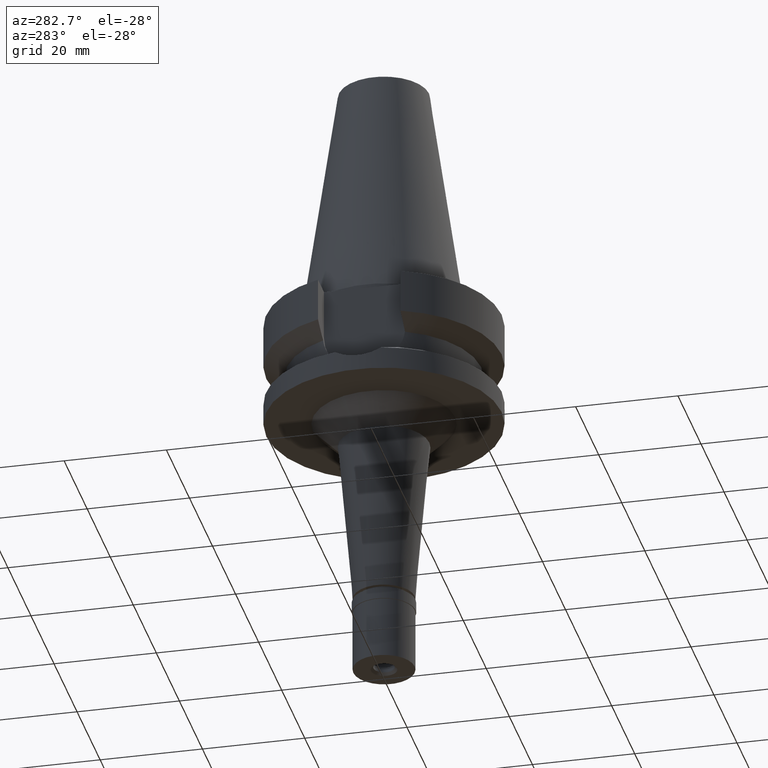
[diagram: clean part render]
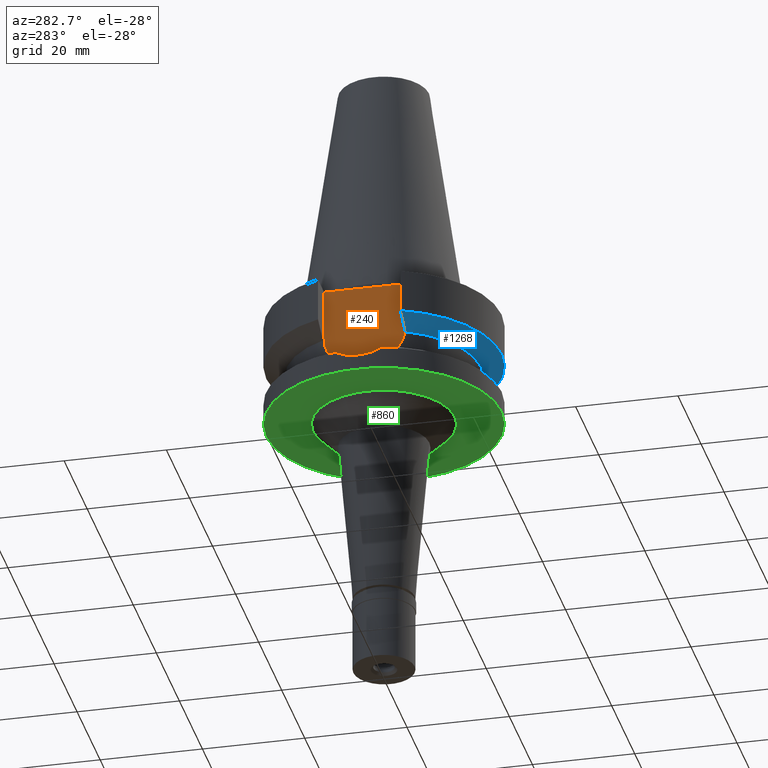
[diagram: same view with three faces highlighted in distinct colors, each labeled with its STEP entity id]
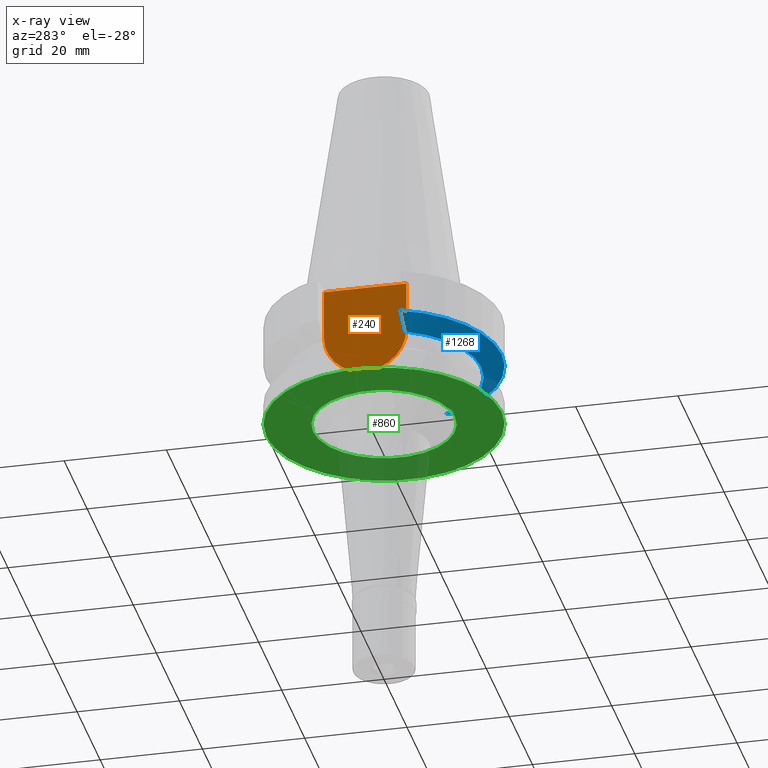
[diagram: x-ray of the same camera — body ghosted, the three highlighted faces saturated]
A machine part, auxiliary view with three faces highlighted in distinct colors.
The next image is the same camera in x-ray (body ghosted, the three faces saturated) — at least one of them is partly hidden behind the body in this view.
Their STEP definitions:

[orange] entity #240 — the highlighted planar face has unit normal (-1, 0, 0).
#128 = LINE ( 'NONE', #1467, #1299 ) ;
#240 = ADVANCED_FACE ( 'NONE', ( #2196 ), #1993, .T. ) ;
#254 = ORIENTED_EDGE ( 'NONE', *, *, #2367, .F. ) ;
#306 = VECTOR ( 'NONE', #1677, 1000.000000000000000 ) ;
#341 = AXIS2_PLACEMENT_3D ( 'NONE', #934, #1844, #1624 ) ;
#656 = DIRECTION ( 'NONE',  ( 0.0000000000000000000, 0.0000000000000000000, -1.000000000000000000 ) ) ;
#753 = LINE ( 'NONE', #1027, #306 ) ;
#778 = ORIENTED_EDGE ( 'NONE', *, *, #2818, .F. ) ;
#834 = CARTESIAN_POINT ( 'NONE',  ( -16.29999999999999716, 2.249676170033999711E-14, 0.0000000000000000000 ) ) ;
#861 = DIRECTION ( 'NONE',  ( 0.0000000000000000000, 0.0000000000000000000, 1.000000000000000000 ) ) ;
#934 = CARTESIAN_POINT ( 'NONE',  ( -16.29999999999999716, 1.981478521019999946E-14, -10.94999999999999929 ) ) ;
#1027 = CARTESIAN_POINT ( 'NONE',  ( -16.29999999999999716, 8.050000000000000711, -10.94999999999999929 ) ) ;
#1122 = ORIENTED_EDGE ( 'NONE', *, *, #2425, .F. ) ;
#1161 = VECTOR ( 'NONE', #656, 1000.000000000000000 ) ;
#1299 = VECTOR ( 'NONE', #2142, 1000.000000000000000 ) ;
#1467 = CARTESIAN_POINT ( 'NONE',  ( -16.29999999999999716, -8.050000000000000711, -1.000000000000000000 ) ) ;
#1538 = EDGE_CURVE ( 'NONE', #1604, #2390, #128, .T. ) ;
#1604 = VERTEX_POINT ( 'NONE', #1711 ) ;
#1623 = CIRCLE ( 'NONE', #341, 8.050000000000000711 ) ;
#1624 = DIRECTION ( 'NONE',  ( 0.0000000000000000000, 0.0000000000000000000, -1.000000000000000000 ) ) ;
#1659 = EDGE_LOOP ( 'NONE', ( #1122, #254, #778, #2647 ) ) ;
#1677 = DIRECTION ( 'NONE',  ( 0.0000000000000000000, 0.0000000000000000000, 1.000000000000000000 ) ) ;
#1698 = VERTEX_POINT ( 'NONE', #2109 ) ;
#1711 = CARTESIAN_POINT ( 'NONE',  ( -16.29999999999999716, -8.050000000000000711, -1.000000000000000000 ) ) ;
#1844 = DIRECTION ( 'NONE',  ( 1.000000000000000000, 0.0000000000000000000, 0.0000000000000000000 ) ) ;
#1862 = VERTEX_POINT ( 'NONE', #2406 ) ;
#1993 = PLANE ( 'NONE',  #2063 ) ;
#2063 = AXIS2_PLACEMENT_3D ( 'NONE', #834, #2668, #861 ) ;
#2109 = CARTESIAN_POINT ( 'NONE',  ( -16.29999999999999716, -8.050000000000000711, -10.94999999999999929 ) ) ;
#2142 = DIRECTION ( 'NONE',  ( 0.0000000000000000000, 1.000000000000000000, 0.0000000000000000000 ) ) ;
#2178 = CARTESIAN_POINT ( 'NONE',  ( -16.29999999999999716, 8.050000000000000711, -1.000000000000000000 ) ) ;
#2196 = FACE_OUTER_BOUND ( 'NONE', #1659, .T. ) ;
#2367 = EDGE_CURVE ( 'NONE', #1698, #1862, #1623, .T. ) ;
#2390 = VERTEX_POINT ( 'NONE', #2178 ) ;
#2406 = CARTESIAN_POINT ( 'NONE',  ( -16.29999999999999716, 8.050000000000000711, -10.94999999999999929 ) ) ;
#2425 = EDGE_CURVE ( 'NONE', #1862, #2390, #753, .T. ) ;
#2517 = CARTESIAN_POINT ( 'NONE',  ( -16.29999999999999716, -8.050000000000000711, -1.000000000000000000 ) ) ;
#2647 = ORIENTED_EDGE ( 'NONE', *, *, #1538, .T. ) ;
#2668 = DIRECTION ( 'NONE',  ( -1.000000000000000000, 0.0000000000000000000, 0.0000000000000000000 ) ) ;
#2752 = LINE ( 'NONE', #2517, #1161 ) ;
#2818 = EDGE_CURVE ( 'NONE', #1604, #1698, #2752, .T. ) ;

[blue] entity #1268 — the highlighted conical surface has half-angle 60 deg.
#18 = FACE_OUTER_BOUND ( 'NONE', #790, .T. ) ;
#21 = DIRECTION ( 'NONE',  ( 0.0000000000000000000, -1.000000000000000000, 0.0000000000000000000 ) ) ;
#102 = VERTEX_POINT ( 'NONE', #611 ) ;
#118 = ORIENTED_EDGE ( 'NONE', *, *, #2947, .F. ) ;
#411 = EDGE_CURVE ( 'NONE', #2332, #844, #731, .T. ) ;
#427 = CIRCLE ( 'NONE', #1136, 23.00000000000000000 ) ;
#554 = CARTESIAN_POINT ( 'NONE',  ( 0.0000000000000000000, 1.093341284896999988E-14, -9.567208369710998639 ) ) ;
#564 = CARTESIAN_POINT ( 'NONE',  ( 18.96736186693999926, -8.050001277873001015, -10.94999977540000025 ) ) ;
#591 = CIRCLE ( 'NONE', #1360, 19.00000000000000000 ) ;
#598 = CARTESIAN_POINT ( 'NONE',  ( 18.30417677519795916, -8.050000009833846448, -11.30245973939780235 ) ) ;
#610 = CARTESIAN_POINT ( 'NONE',  ( -21.54524325238000060, -8.049999577366000025, -9.567211146628999074 ) ) ;
#611 = CARTESIAN_POINT ( 'NONE',  ( 21.54524309446999908, -8.050000000002000888, -9.567208369710998639 ) ) ;
#639 = CARTESIAN_POINT ( 'NONE',  ( -18.30334760937699201, -8.049999956192326778, -11.30291655530038852 ) ) ;
#648 = CARTESIAN_POINT ( 'NONE',  ( -17.23531622822000386, -7.996491147957000223, -11.87660607717000083 ) ) ;
#727 = EDGE_CURVE ( 'NONE', #1423, #102, #1385, .T. ) ;
#731 = B_SPLINE_CURVE_WITH_KNOTS ( 'NONE', 3,
 ( #610, #768, #1474, #1260 ),
 .UNSPECIFIED., .F., .F.,
 ( 4, 4 ),
 ( 0.0000000000000000000, 1.000000000000000000 ),
 .UNSPECIFIED. ) ;
#733 = DIRECTION ( 'NONE',  ( 0.0000000000000000000, 1.000000000000000000, 0.0000000000000000000 ) ) ;
#763 = CARTESIAN_POINT ( 'NONE',  ( 21.54524309446999908, -8.050000000002000888, -9.567208369710998639 ) ) ;
#768 = CARTESIAN_POINT ( 'NONE',  ( -20.64098922447006501, -8.049999155425616948, -10.05625859811076062 ) ) ;
#790 = EDGE_LOOP ( 'NONE', ( #2656, #118, #2879, #2450, #2123, #1004 ) ) ;
#793 = EDGE_CURVE ( 'NONE', #2332, #102, #427, .T. ) ;
#822 = VERTEX_POINT ( 'NONE', #933 ) ;
#844 = VERTEX_POINT ( 'NONE', #1992 ) ;
#914 = VERTEX_POINT ( 'NONE', #1838 ) ;
#933 = CARTESIAN_POINT ( 'NONE',  ( 17.23531135313000107, -7.996501749111999402, -11.87660739354000050 ) ) ;
#940 = CARTESIAN_POINT ( 'NONE',  ( 0.0000000000000000000, 1.093341284896999988E-14, -10.72190890808999875 ) ) ;
#948 = AXIS2_PLACEMENT_3D ( 'NONE', #940, #2111, #733 ) ;
#989 = CARTESIAN_POINT ( 'NONE',  ( 18.96736186693999926, -8.050001277873001015, -10.94999977540000025 ) ) ;
#1004 = ORIENTED_EDGE ( 'NONE', *, *, #411, .T. ) ;
#1136 = AXIS2_PLACEMENT_3D ( 'NONE', #554, #2781, #21 ) ;
#1260 = CARTESIAN_POINT ( 'NONE',  ( -18.96738966519000158, -8.049994318072998922, -10.95000099924999937 ) ) ;
#1268 = ADVANCED_FACE ( 'NONE', ( #18 ), #2392, .T. ) ;
#1360 = AXIS2_PLACEMENT_3D ( 'NONE', #2117, #2380, #1426 ) ;
#1385 = B_SPLINE_CURVE_WITH_KNOTS ( 'NONE', 3,
 ( #989, #1634, #2809, #763 ),
 .UNSPECIFIED., .F., .F.,
 ( 4, 4 ),
 ( 0.0000000000000000000, 1.000000000000000000 ),
 .UNSPECIFIED. ) ;
#1400 = CARTESIAN_POINT ( 'NONE',  ( -21.54524325238000060, -8.049999577366000025, -9.567211146628999074 ) ) ;
#1423 = VERTEX_POINT ( 'NONE', #564 ) ;
#1426 = DIRECTION ( 'NONE',  ( 0.0000000000000000000, -1.000000000000000000, 0.0000000000000000000 ) ) ;
#1452 = B_SPLINE_CURVE_WITH_KNOTS ( 'NONE', 3,
 ( #1950, #598, #2664, #2208 ),
 .UNSPECIFIED., .F., .F.,
 ( 4, 4 ),
 ( 0.0000000000000000000, 1.000000000000000000 ),
 .UNSPECIFIED. ) ;
#1474 = CARTESIAN_POINT ( 'NONE',  ( -19.78174442230801944, -8.049991903457389242, -10.51718567404479820 ) ) ;
#1634 = CARTESIAN_POINT ( 'NONE',  ( 19.78176446227738339, -8.050001299918164932, -10.51717305795229151 ) ) ;
#1776 = CARTESIAN_POINT ( 'NONE',  ( -17.72598979705365707, -8.027133611820948644, -11.61218201620178014 ) ) ;
#1784 = B_SPLINE_CURVE_WITH_KNOTS ( 'NONE', 3,
 ( #648, #1776, #639, #2001 ),
 .UNSPECIFIED., .F., .F.,
 ( 4, 4 ),
 ( 0.0000000000000000000, 1.000000000000000000 ),
 .UNSPECIFIED. ) ;
#1838 = CARTESIAN_POINT ( 'NONE',  ( -17.23531622822000386, -7.996491147957000223, -11.87660607717000083 ) ) ;
#1950 = CARTESIAN_POINT ( 'NONE',  ( 18.96736186693999926, -8.050001277873001015, -10.94999977540000025 ) ) ;
#1992 = CARTESIAN_POINT ( 'NONE',  ( -18.96738966519000158, -8.049994318072998922, -10.95000099924999937 ) ) ;
#2001 = CARTESIAN_POINT ( 'NONE',  ( -18.96738966519000158, -8.049994318072998922, -10.95000099924999937 ) ) ;
#2111 = DIRECTION ( 'NONE',  ( 0.0000000000000000000, 0.0000000000000000000, 1.000000000000000000 ) ) ;
#2117 = CARTESIAN_POINT ( 'NONE',  ( 0.0000000000000000000, 1.093341284896999988E-14, -11.87660944646999894 ) ) ;
#2123 = ORIENTED_EDGE ( 'NONE', *, *, #793, .F. ) ;
#2135 = EDGE_CURVE ( 'NONE', #914, #844, #1784, .T. ) ;
#2208 = CARTESIAN_POINT ( 'NONE',  ( 17.23531135313000107, -7.996501749111999402, -11.87660739354000050 ) ) ;
#2332 = VERTEX_POINT ( 'NONE', #1400 ) ;
#2380 = DIRECTION ( 'NONE',  ( 0.0000000000000000000, 0.0000000000000000000, -1.000000000000000000 ) ) ;
#2392 = CONICAL_SURFACE ( 'NONE', #948, 21.00000000000000000, 1.047197551196400456 ) ;
#2450 = ORIENTED_EDGE ( 'NONE', *, *, #727, .T. ) ;
#2656 = ORIENTED_EDGE ( 'NONE', *, *, #2135, .F. ) ;
#2664 = CARTESIAN_POINT ( 'NONE',  ( 17.72682660392796095, -8.027186146807153477, -11.61172867117429419 ) ) ;
#2781 = DIRECTION ( 'NONE',  ( 0.0000000000000000000, 0.0000000000000000000, 1.000000000000000000 ) ) ;
#2785 = EDGE_CURVE ( 'NONE', #1423, #822, #1452, .T. ) ;
#2809 = CARTESIAN_POINT ( 'NONE',  ( 20.64101735201231591, -8.050004185258069711, -10.05624233374762966 ) ) ;
#2879 = ORIENTED_EDGE ( 'NONE', *, *, #2785, .F. ) ;
#2947 = EDGE_CURVE ( 'NONE', #822, #914, #591, .T. ) ;

[green] entity #860 — the highlighted planar face has unit normal (0, 0, -1).
#185 = PLANE ( 'NONE',  #1791 ) ;
#196 = AXIS2_PLACEMENT_3D ( 'NONE', #684, #924, #1912 ) ;
#202 = AXIS2_PLACEMENT_3D ( 'NONE', #1592, #2049, #222 ) ;
#222 = DIRECTION ( 'NONE',  ( 0.0000000000000000000, -1.000000000000000000, 0.0000000000000000000 ) ) ;
#229 = CARTESIAN_POINT ( 'NONE',  ( 0.0000000000000000000, -13.86962816365000073, -22.00000000000000000 ) ) ;
#389 = AXIS2_PLACEMENT_3D ( 'NONE', #1238, #2606, #761 ) ;
#446 = AXIS2_PLACEMENT_3D ( 'NONE', #1106, #2465, #2919 ) ;
#453 = ORIENTED_EDGE ( 'NONE', *, *, #1433, .F. ) ;
#605 = VERTEX_POINT ( 'NONE', #1894 ) ;
#684 = CARTESIAN_POINT ( 'NONE',  ( 0.0000000000000000000, 1.890487263844000250E-14, -22.00000000000000000 ) ) ;
#761 = DIRECTION ( 'NONE',  ( 0.0000000000000000000, 1.000000000000000000, 0.0000000000000000000 ) ) ;
#859 = DIRECTION ( 'NONE',  ( 0.0000000000000000000, 0.0000000000000000000, -1.000000000000000000 ) ) ;
#860 = ADVANCED_FACE ( 'NONE', ( #1327, #2241 ), #185, .T. ) ;
#898 = ORIENTED_EDGE ( 'NONE', *, *, #1848, .F. ) ;
#924 = DIRECTION ( 'NONE',  ( 0.0000000000000000000, 0.0000000000000000000, 1.000000000000000000 ) ) ;
#1067 = CARTESIAN_POINT ( 'NONE',  ( 0.0000000000000000000, 23.00000000000000000, -22.00000000000000000 ) ) ;
#1095 = CARTESIAN_POINT ( 'NONE',  ( 0.0000000000000000000, 0.0000000000000000000, -22.00000000000000000 ) ) ;
#1106 = CARTESIAN_POINT ( 'NONE',  ( 0.0000000000000000000, 0.0000000000000000000, -22.00000000000000000 ) ) ;
#1219 = VERTEX_POINT ( 'NONE', #1277 ) ;
#1238 = CARTESIAN_POINT ( 'NONE',  ( 0.0000000000000000000, 0.0000000000000000000, -22.00000000000000000 ) ) ;
#1277 = CARTESIAN_POINT ( 'NONE',  ( 0.0000000000000000000, -23.00000000000000000, -22.00000000000000000 ) ) ;
#1327 = FACE_OUTER_BOUND ( 'NONE', #1853, .T. ) ;
#1433 = EDGE_CURVE ( 'NONE', #605, #1839, #2397, .T. ) ;
#1592 = CARTESIAN_POINT ( 'NONE',  ( 0.0000000000000000000, 1.890487263844000250E-14, -22.00000000000000000 ) ) ;
#1768 = DIRECTION ( 'NONE',  ( 0.0000000000000000000, -1.000000000000000000, 0.0000000000000000000 ) ) ;
#1791 = AXIS2_PLACEMENT_3D ( 'NONE', #1095, #859, #1768 ) ;
#1839 = VERTEX_POINT ( 'NONE', #229 ) ;
#1848 = EDGE_CURVE ( 'NONE', #2047, #1219, #2118, .T. ) ;
#1853 = EDGE_LOOP ( 'NONE', ( #898, #2749 ) ) ;
#1877 = EDGE_LOOP ( 'NONE', ( #453, #2588 ) ) ;
#1894 = CARTESIAN_POINT ( 'NONE',  ( 0.0000000000000000000, 13.86962816365000073, -22.00000000000000000 ) ) ;
#1912 = DIRECTION ( 'NONE',  ( 0.0000000000000000000, 1.000000000000000000, 0.0000000000000000000 ) ) ;
#2047 = VERTEX_POINT ( 'NONE', #1067 ) ;
#2048 = EDGE_CURVE ( 'NONE', #1839, #605, #2166, .T. ) ;
#2049 = DIRECTION ( 'NONE',  ( 0.0000000000000000000, 0.0000000000000000000, 1.000000000000000000 ) ) ;
#2118 = CIRCLE ( 'NONE', #196, 23.00000000000000000 ) ;
#2166 = CIRCLE ( 'NONE', #446, 13.86962816365000073 ) ;
#2241 = FACE_BOUND ( 'NONE', #1877, .T. ) ;
#2260 = CIRCLE ( 'NONE', #202, 23.00000000000000000 ) ;
#2397 = CIRCLE ( 'NONE', #389, 13.86962816365000073 ) ;
#2465 = DIRECTION ( 'NONE',  ( 0.0000000000000000000, 0.0000000000000000000, -1.000000000000000000 ) ) ;
#2588 = ORIENTED_EDGE ( 'NONE', *, *, #2048, .F. ) ;
#2606 = DIRECTION ( 'NONE',  ( 0.0000000000000000000, 0.0000000000000000000, -1.000000000000000000 ) ) ;
#2749 = ORIENTED_EDGE ( 'NONE', *, *, #2797, .F. ) ;
#2797 = EDGE_CURVE ( 'NONE', #1219, #2047, #2260, .T. ) ;
#2919 = DIRECTION ( 'NONE',  ( 0.0000000000000000000, -1.000000000000000000, 0.0000000000000000000 ) ) ;